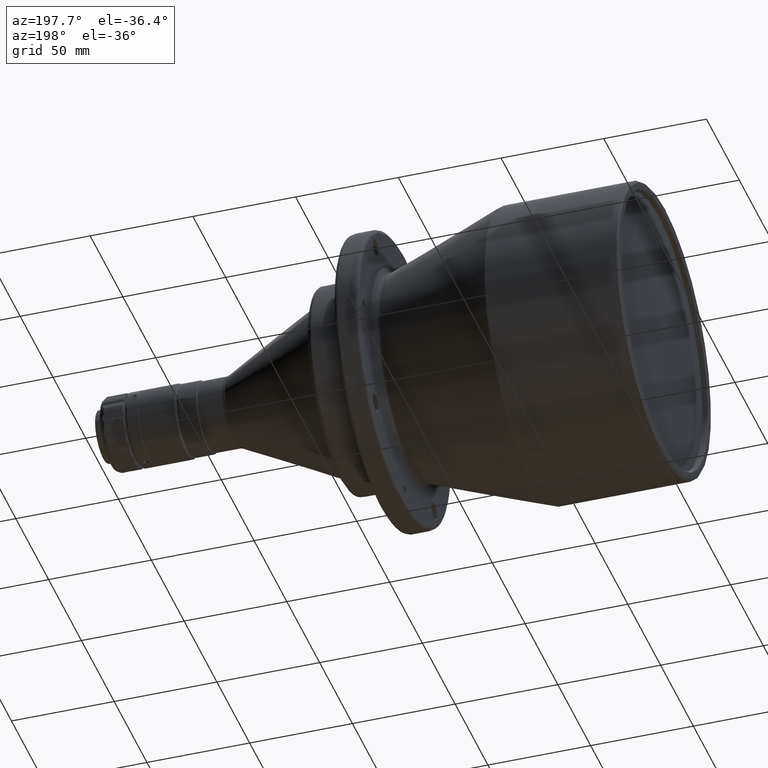
[diagram: clean part render]
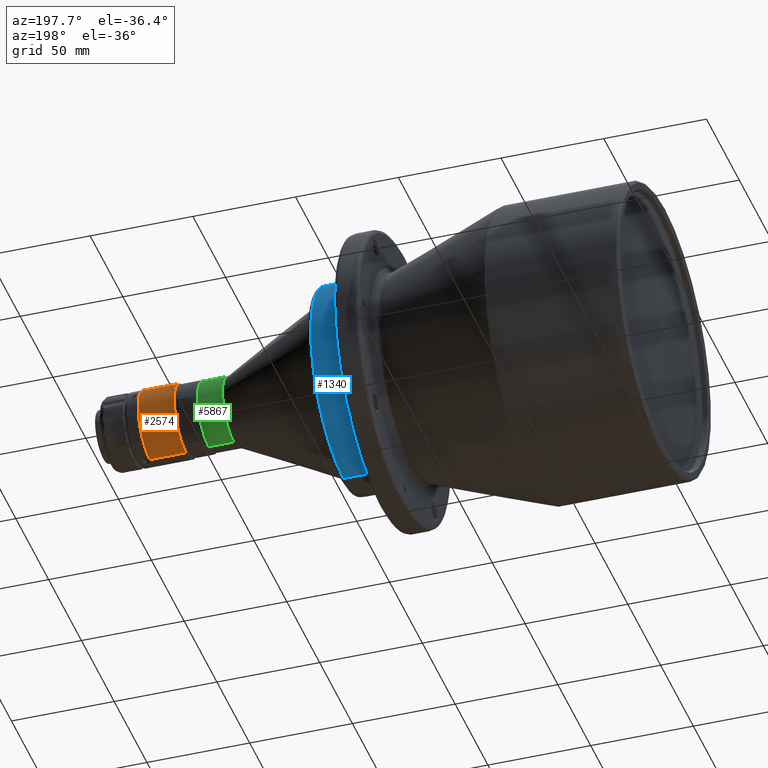
[diagram: same view with three faces highlighted in distinct colors, each labeled with its STEP entity id]
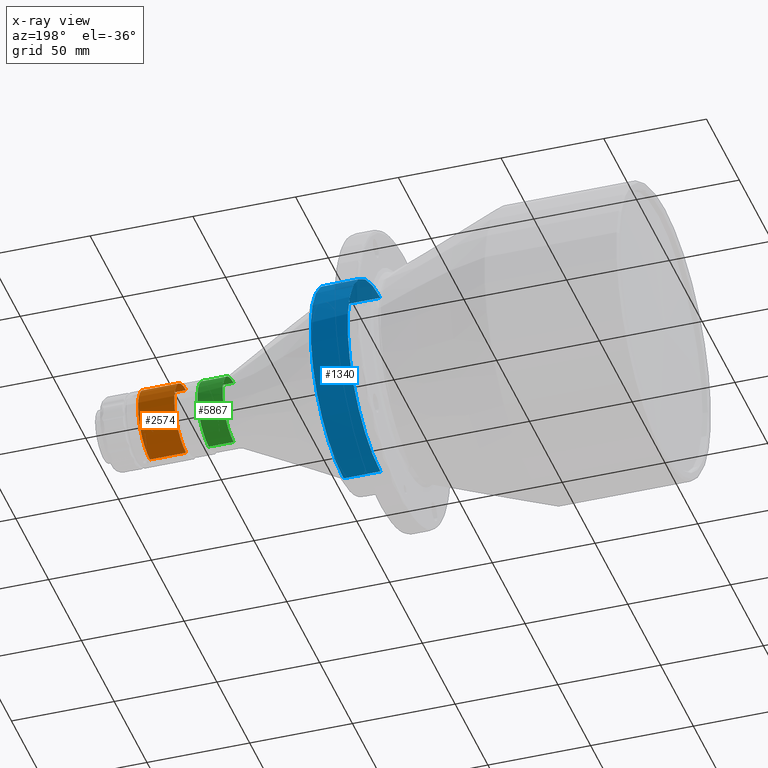
[diagram: x-ray of the same camera — body ghosted, the three highlighted faces saturated]
A machine part, auxiliary view with three faces highlighted in distinct colors.
The next image is the same camera in x-ray (body ghosted, the three faces saturated) — at least one of them is partly hidden behind the body in this view.
Their STEP definitions:

[orange] entity #2574 — the highlighted cylindrical surface (partial cylindrical patch) has radius 18 mm, axis along (-1, -0, 0).
#68 = EDGE_CURVE ( 'NONE', #3720, #4271, #6514, .T. ) ;
#252 = DIRECTION ( 'NONE',  ( -1.000000000000000000, -0.0000000000000000000, 0.0000000000000000000 ) ) ;
#381 = CARTESIAN_POINT ( 'NONE',  ( 233.1000000000000800, 2.204364238435408600E-015, -17.99999999975644400 ) ) ;
#1031 = CIRCLE ( 'NONE', #3663, 17.99999999975644400 ) ;
#1076 = CARTESIAN_POINT ( 'NONE',  ( 250.7200000000000000, 0.0000000000000000000, 0.0000000000000000000 ) ) ;
#1132 = CIRCLE ( 'NONE', #5359, 17.99999999975644400 ) ;
#1161 = CARTESIAN_POINT ( 'NONE',  ( 250.7200000000000000, 2.204364238435408600E-015, -17.99999999975644400 ) ) ;
#1192 = VERTEX_POINT ( 'NONE', #2157 ) ;
#1220 = ORIENTED_EDGE ( 'NONE', *, *, #68, .T. ) ;
#1889 = CYLINDRICAL_SURFACE ( 'NONE', #6205, 17.99999999975644400 ) ;
#2105 = DIRECTION ( 'NONE',  ( 1.000000000000000000, 0.0000000000000000000, -0.0000000000000000000 ) ) ;
#2157 = CARTESIAN_POINT ( 'NONE',  ( 250.7200000000000000, 0.0000000000000000000, 17.99999999975644400 ) ) ;
#2574 = ADVANCED_FACE ( 'NONE', ( #3761 ), #1889, .T. ) ;
#2675 = CARTESIAN_POINT ( 'NONE',  ( 250.7200000000000000, 0.0000000000000000000, 17.99999999975644400 ) ) ;
#2683 = CARTESIAN_POINT ( 'NONE',  ( 233.1000000000000800, 0.0000000000000000000, 0.0000000000000000000 ) ) ;
#2715 = VERTEX_POINT ( 'NONE', #2866 ) ;
#2729 = ORIENTED_EDGE ( 'NONE', *, *, #5091, .T. ) ;
#2866 = CARTESIAN_POINT ( 'NONE',  ( 233.1000000000000800, 0.0000000000000000000, 17.99999999975644400 ) ) ;
#2893 = CARTESIAN_POINT ( 'NONE',  ( 250.7200000000000000, 2.204364238435408600E-015, -17.99999999975644400 ) ) ;
#3576 = EDGE_CURVE ( 'NONE', #3720, #1192, #1132, .T. ) ;
#3663 = AXIS2_PLACEMENT_3D ( 'NONE', #2683, #6354, #4274 ) ;
#3720 = VERTEX_POINT ( 'NONE', #1161 ) ;
#3722 = DIRECTION ( 'NONE',  ( 0.0000000000000000000, 0.0000000000000000000, 1.000000000000000000 ) ) ;
#3761 = FACE_OUTER_BOUND ( 'NONE', #6779, .T. ) ;
#3805 = EDGE_CURVE ( 'NONE', #1192, #2715, #4559, .T. ) ;
#3835 = ORIENTED_EDGE ( 'NONE', *, *, #3805, .F. ) ;
#4207 = CARTESIAN_POINT ( 'NONE',  ( 250.7200000000000000, 0.0000000000000000000, 0.0000000000000000000 ) ) ;
#4240 = DIRECTION ( 'NONE',  ( -1.000000000000000000, -0.0000000000000000000, 0.0000000000000000000 ) ) ;
#4271 = VERTEX_POINT ( 'NONE', #381 ) ;
#4274 = DIRECTION ( 'NONE',  ( -4.625929269334078300E-015, -0.9202505851235627300, 0.3913296060608506000 ) ) ;
#4279 = DIRECTION ( 'NONE',  ( -1.000000000000000000, -0.0000000000000000000, 0.0000000000000000000 ) ) ;
#4311 = ORIENTED_EDGE ( 'NONE', *, *, #3576, .F. ) ;
#4559 = LINE ( 'NONE', #2675, #6455 ) ;
#5091 = EDGE_CURVE ( 'NONE', #4271, #2715, #1031, .T. ) ;
#5113 = VECTOR ( 'NONE', #252, 1000.000000000000000 ) ;
#5359 = AXIS2_PLACEMENT_3D ( 'NONE', #4207, #2105, #6772 ) ;
#6205 = AXIS2_PLACEMENT_3D ( 'NONE', #1076, #4279, #3722 ) ;
#6354 = DIRECTION ( 'NONE',  ( 1.000000000000000000, 0.0000000000000000000, 0.0000000000000000000 ) ) ;
#6455 = VECTOR ( 'NONE', #4240, 1000.000000000000000 ) ;
#6514 = LINE ( 'NONE', #2893, #5113 ) ;
#6772 = DIRECTION ( 'NONE',  ( 0.0000000000000000000, 0.0000000000000000000, 1.000000000000000000 ) ) ;
#6779 = EDGE_LOOP ( 'NONE', ( #4311, #1220, #2729, #3835 ) ) ;

[blue] entity #1340 — the highlighted cylindrical surface (partial cylindrical patch) has radius 50 mm, axis along (-1, 0, 0).
#133 = ORIENTED_EDGE ( 'NONE', *, *, #3501, .F. ) ;
#234 = ORIENTED_EDGE ( 'NONE', *, *, #2488, .T. ) ;
#336 = VERTEX_POINT ( 'NONE', #4427 ) ;
#841 = VECTOR ( 'NONE', #3758, 1000.000000000000000 ) ;
#1340 = ADVANCED_FACE ( 'NONE', ( #4223 ), #4670, .T. ) ;
#1548 = ORIENTED_EDGE ( 'NONE', *, *, #3458, .F. ) ;
#1688 = CARTESIAN_POINT ( 'NONE',  ( 156.5000000010000200, 0.0000000000000000000, 0.0000000000000000000 ) ) ;
#2245 = AXIS2_PLACEMENT_3D ( 'NONE', #1688, #5335, #3801 ) ;
#2272 = DIRECTION ( 'NONE',  ( 0.0000000000000000000, 0.0000000000000000000, 1.000000000000000000 ) ) ;
#2315 = LINE ( 'NONE', #5410, #841 ) ;
#2478 = DIRECTION ( 'NONE',  ( 1.000000000000000000, -0.0000000000000000000, -0.0000000000000000000 ) ) ;
#2488 = EDGE_CURVE ( 'NONE', #336, #4605, #3428, .T. ) ;
#2517 = CARTESIAN_POINT ( 'NONE',  ( 156.5000000010000200, 0.0000000000000000000, 50.00000000000000000 ) ) ;
#2584 = DIRECTION ( 'NONE',  ( -1.000000000000000000, 0.0000000000000000000, 0.0000000000000000000 ) ) ;
#2906 = VERTEX_POINT ( 'NONE', #6253 ) ;
#3053 = CARTESIAN_POINT ( 'NONE',  ( 138.5000000000000000, 0.0000000000000000000, 50.00000000000000000 ) ) ;
#3151 = AXIS2_PLACEMENT_3D ( 'NONE', #3506, #2478, #6140 ) ;
#3184 = CIRCLE ( 'NONE', #3151, 50.00000000000000000 ) ;
#3206 = CIRCLE ( 'NONE', #4780, 50.00000000000000000 ) ;
#3428 = LINE ( 'NONE', #6734, #5480 ) ;
#3458 = EDGE_CURVE ( 'NONE', #2906, #4952, #3206, .T. ) ;
#3501 = EDGE_CURVE ( 'NONE', #336, #2906, #3184, .T. ) ;
#3506 = CARTESIAN_POINT ( 'NONE',  ( 156.5000000010000200, 0.0000000000000000000, 0.0000000000000000000 ) ) ;
#3758 = DIRECTION ( 'NONE',  ( -1.000000000000000000, 0.0000000000000000000, 0.0000000000000000000 ) ) ;
#3776 = CARTESIAN_POINT ( 'NONE',  ( 138.5000000000000000, 0.0000000000000000000, 0.0000000000000000000 ) ) ;
#3790 = EDGE_LOOP ( 'NONE', ( #133, #234, #3853, #6574, #1548 ) ) ;
#3801 = DIRECTION ( 'NONE',  ( 0.0000000000000000000, 0.0000000000000000000, 1.000000000000000000 ) ) ;
#3853 = ORIENTED_EDGE ( 'NONE', *, *, #4030, .T. ) ;
#4030 = EDGE_CURVE ( 'NONE', #4605, #4935, #6364, .T. ) ;
#4223 = FACE_OUTER_BOUND ( 'NONE', #3790, .T. ) ;
#4427 = CARTESIAN_POINT ( 'NONE',  ( 156.5000000010000200, 6.123233995736766100E-015, -50.00000000000000000 ) ) ;
#4587 = DIRECTION ( 'NONE',  ( 0.0000000000000000000, 1.243449787580175500E-014, 1.000000000000000000 ) ) ;
#4605 = VERTEX_POINT ( 'NONE', #6274 ) ;
#4670 = CYLINDRICAL_SURFACE ( 'NONE', #2245, 50.00000000000000000 ) ;
#4780 = AXIS2_PLACEMENT_3D ( 'NONE', #5097, #6080, #4587 ) ;
#4935 = VERTEX_POINT ( 'NONE', #3053 ) ;
#4952 = VERTEX_POINT ( 'NONE', #2517 ) ;
#5084 = AXIS2_PLACEMENT_3D ( 'NONE', #3776, #6419, #2272 ) ;
#5097 = CARTESIAN_POINT ( 'NONE',  ( 156.5000000010000200, 0.0000000000000000000, 0.0000000000000000000 ) ) ;
#5335 = DIRECTION ( 'NONE',  ( -1.000000000000000000, 0.0000000000000000000, 0.0000000000000000000 ) ) ;
#5410 = CARTESIAN_POINT ( 'NONE',  ( 156.5000000010000200, 0.0000000000000000000, 50.00000000000000000 ) ) ;
#5480 = VECTOR ( 'NONE', #2584, 1000.000000000000000 ) ;
#5998 = EDGE_CURVE ( 'NONE', #4952, #4935, #2315, .T. ) ;
#6080 = DIRECTION ( 'NONE',  ( 1.000000000000000000, -0.0000000000000000000, -0.0000000000000000000 ) ) ;
#6140 = DIRECTION ( 'NONE',  ( 0.0000000000000000000, 0.0000000000000000000, 1.000000000000000000 ) ) ;
#6253 = CARTESIAN_POINT ( 'NONE',  ( 156.5000000010000200, 2.211812894317474900, 49.95105488110911600 ) ) ;
#6274 = CARTESIAN_POINT ( 'NONE',  ( 138.5000000000000000, 6.123233995736766100E-015, -50.00000000000000000 ) ) ;
#6364 = CIRCLE ( 'NONE', #5084, 50.00000000000000000 ) ;
#6419 = DIRECTION ( 'NONE',  ( 1.000000000000000000, -0.0000000000000000000, -0.0000000000000000000 ) ) ;
#6574 = ORIENTED_EDGE ( 'NONE', *, *, #5998, .F. ) ;
#6734 = CARTESIAN_POINT ( 'NONE',  ( 156.5000000010000200, 6.123233995736766100E-015, -50.00000000000000000 ) ) ;

[green] entity #5867 — the highlighted cylindrical surface (partial cylindrical patch) has radius 17 mm, axis along (-1, -0, 0).
#6 = EDGE_CURVE ( 'NONE', #5601, #1736, #3155, .T. ) ;
#137 = VECTOR ( 'NONE', #6749, 1000.000000000000000 ) ;
#198 = VERTEX_POINT ( 'NONE', #6449 ) ;
#672 = EDGE_CURVE ( 'NONE', #5601, #706, #3806, .T. ) ;
#706 = VERTEX_POINT ( 'NONE', #3062 ) ;
#1290 = CARTESIAN_POINT ( 'NONE',  ( 209.9481094200000100, -6.159722737114500800E-015, 7.775975936038346600E-015 ) ) ;
#1563 = ORIENTED_EDGE ( 'NONE', *, *, #4743, .T. ) ;
#1615 = CARTESIAN_POINT ( 'NONE',  ( 222.0999999999999900, 0.0000000000000000000, 17.00000000044810400 ) ) ;
#1686 = AXIS2_PLACEMENT_3D ( 'NONE', #1290, #2339, #2894 ) ;
#1736 = VERTEX_POINT ( 'NONE', #6468 ) ;
#2030 = ORIENTED_EDGE ( 'NONE', *, *, #2576, .F. ) ;
#2216 = VERTEX_POINT ( 'NONE', #4520 ) ;
#2339 = DIRECTION ( 'NONE',  ( 1.000000000000000000, 5.068941903782765300E-016, -6.398984491216798900E-016 ) ) ;
#2457 = ORIENTED_EDGE ( 'NONE', *, *, #6, .T. ) ;
#2576 = EDGE_CURVE ( 'NONE', #706, #2216, #3271, .T. ) ;
#2749 = ORIENTED_EDGE ( 'NONE', *, *, #4995, .T. ) ;
#2756 = AXIS2_PLACEMENT_3D ( 'NONE', #3798, #4784, #5836 ) ;
#2894 = DIRECTION ( 'NONE',  ( 0.0000000000000000000, -1.776356839400250500E-015, 1.000000000000000000 ) ) ;
#3062 = CARTESIAN_POINT ( 'NONE',  ( 222.0999999999999900, -1.263317799705001600E-039, 17.00000000044810400 ) ) ;
#3155 = LINE ( 'NONE', #4113, #137 ) ;
#3271 = LINE ( 'NONE', #1615, #6705 ) ;
#3552 = EDGE_LOOP ( 'NONE', ( #3970, #2457, #2749, #1563, #2030 ) ) ;
#3742 = DIRECTION ( 'NONE',  ( 1.000000000000000000, 5.068941903782765300E-016, -6.398984491216798900E-016 ) ) ;
#3798 = CARTESIAN_POINT ( 'NONE',  ( 222.0999999999999900, -1.263317799705001600E-039, 1.594800485236904900E-039 ) ) ;
#3806 = CIRCLE ( 'NONE', #2756, 17.00000000044810400 ) ;
#3891 = AXIS2_PLACEMENT_3D ( 'NONE', #5846, #6784, #4222 ) ;
#3970 = ORIENTED_EDGE ( 'NONE', *, *, #672, .F. ) ;
#4113 = CARTESIAN_POINT ( 'NONE',  ( 222.0999999999999900, 2.081899558605377400E-015, -17.00000000044810400 ) ) ;
#4139 = CYLINDRICAL_SURFACE ( 'NONE', #3891, 17.00000000044810400 ) ;
#4222 = DIRECTION ( 'NONE',  ( 0.0000000000000000000, 0.0000000000000000000, 1.000000000000000000 ) ) ;
#4317 = CIRCLE ( 'NONE', #1686, 17.00000000044810400 ) ;
#4520 = CARTESIAN_POINT ( 'NONE',  ( 209.9481094200000100, -6.159722737114495200E-015, 17.00000000044811100 ) ) ;
#4743 = EDGE_CURVE ( 'NONE', #198, #2216, #4317, .T. ) ;
#4784 = DIRECTION ( 'NONE',  ( 1.000000000000000000, 5.068941903782765300E-016, -6.398984491216798900E-016 ) ) ;
#4995 = EDGE_CURVE ( 'NONE', #1736, #198, #5866, .T. ) ;
#5263 = DIRECTION ( 'NONE',  ( -1.000000000000000000, -5.068941903782765300E-016, 6.398984491216799900E-016 ) ) ;
#5371 = CARTESIAN_POINT ( 'NONE',  ( 222.0999999999999900, -9.979618099518810800E-016, -17.00000000044810400 ) ) ;
#5601 = VERTEX_POINT ( 'NONE', #5371 ) ;
#5782 = DIRECTION ( 'NONE',  ( 0.0000000000000000000, 0.0000000000000000000, 1.000000000000000000 ) ) ;
#5836 = DIRECTION ( 'NONE',  ( 0.0000000000000000000, 0.0000000000000000000, 1.000000000000000000 ) ) ;
#5846 = CARTESIAN_POINT ( 'NONE',  ( 222.0999999999999900, 0.0000000000000000000, 0.0000000000000000000 ) ) ;
#5853 = CARTESIAN_POINT ( 'NONE',  ( 209.9481094200000100, -6.159722737114500800E-015, 7.775975936038346600E-015 ) ) ;
#5866 = CIRCLE ( 'NONE', #6034, 17.00000000044810400 ) ;
#5867 = ADVANCED_FACE ( 'NONE', ( #5939 ), #4139, .T. ) ;
#5939 = FACE_OUTER_BOUND ( 'NONE', #3552, .T. ) ;
#6034 = AXIS2_PLACEMENT_3D ( 'NONE', #5853, #3742, #5782 ) ;
#6449 = CARTESIAN_POINT ( 'NONE',  ( 209.9481094199999800, 13.32565783245837400, 10.55589140468375200 ) ) ;
#6468 = CARTESIAN_POINT ( 'NONE',  ( 209.9481094200000100, -4.077823178509128500E-015, -17.00000000044809700 ) ) ;
#6705 = VECTOR ( 'NONE', #5263, 1000.000000000000000 ) ;
#6749 = DIRECTION ( 'NONE',  ( -1.000000000000000000, -5.068941903782765300E-016, 6.398984491216799900E-016 ) ) ;
#6784 = DIRECTION ( 'NONE',  ( -1.000000000000000000, -5.068941903782765300E-016, 6.398984491216798900E-016 ) ) ;